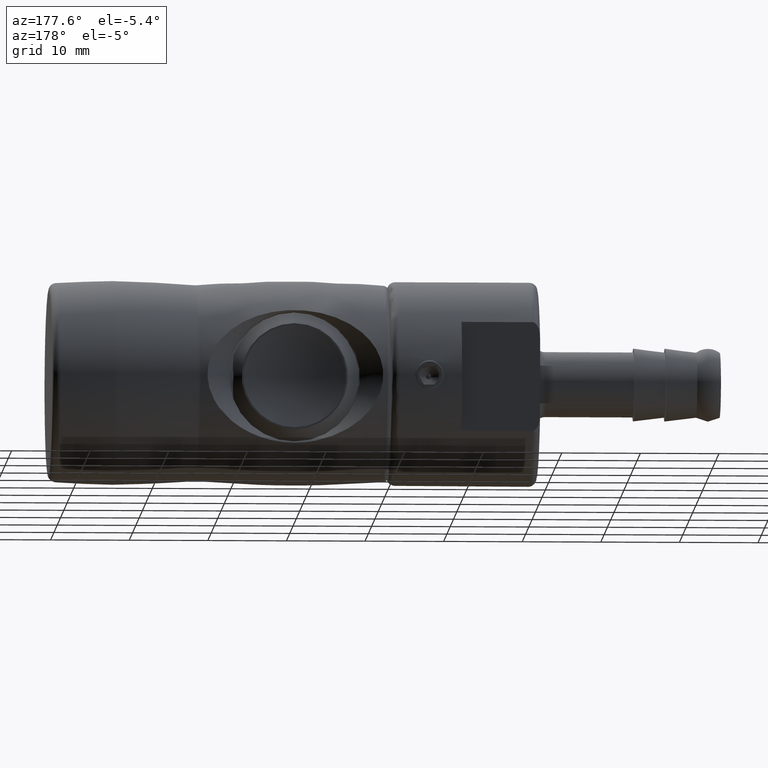
[diagram: clean part render]
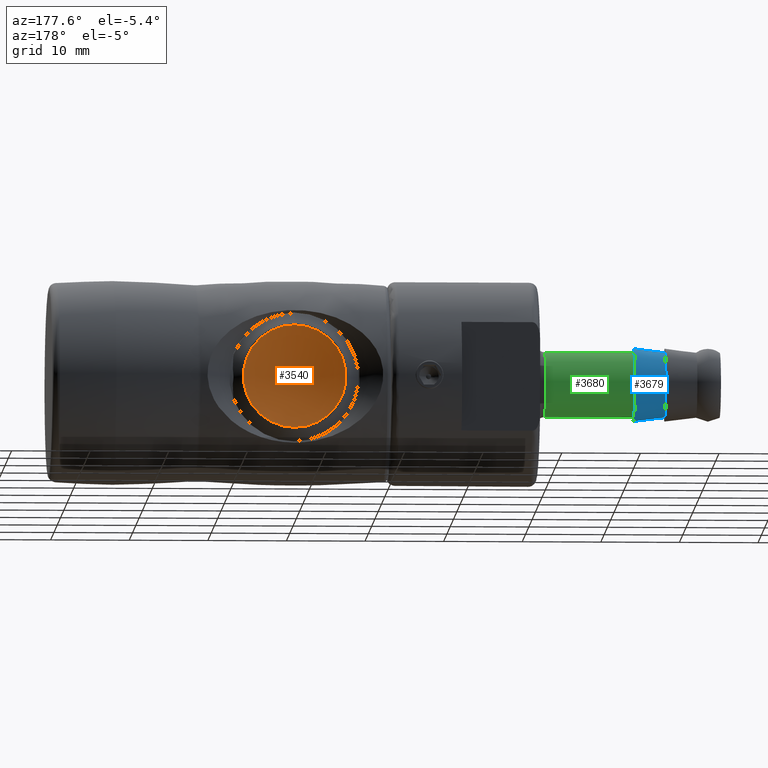
[diagram: same view with three faces highlighted in distinct colors, each labeled with its STEP entity id]
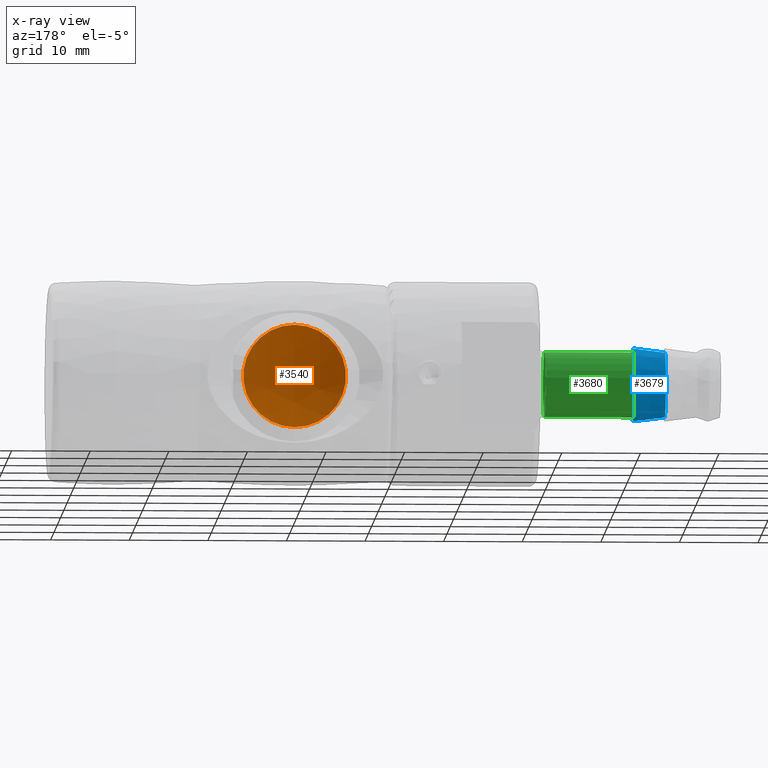
[diagram: x-ray of the same camera — body ghosted, the three highlighted faces saturated]
A machine part, auxiliary view with three faces highlighted in distinct colors.
The next image is the same camera in x-ray (body ghosted, the three faces saturated) — at least one of them is partly hidden behind the body in this view.
Their STEP definitions:

[orange] entity #3540 — the highlighted spherical surface has radius 20 mm.
#13=SPHERICAL_SURFACE('',#3908,20.);
#790=FACE_OUTER_BOUND('',#1022,.T.);
#1022=EDGE_LOOP('',(#2737));
#1287=CIRCLE('',#3909,6.54140657657051);
#1581=VERTEX_POINT('',#8366);
#2037=EDGE_CURVE('',#1581,#1581,#1287,.T.);
#2737=ORIENTED_EDGE('',*,*,#2037,.F.);
#3540=ADVANCED_FACE('',(#790),#13,.F.);
#3908=AXIS2_PLACEMENT_3D('',#8365,#4584,#4585);
#3909=AXIS2_PLACEMENT_3D('',#8367,#4586,#4587);
#4584=DIRECTION('center_axis',(-1.,0.,3.34767643417387E-17));
#4585=DIRECTION('ref_axis',(0.,0.,1.));
#4586=DIRECTION('center_axis',(8.37302466146294E-17,-1.,6.14652588342876E-17));
#4587=DIRECTION('ref_axis',(2.77555756156289E-17,-6.14652588342876E-17,
-1.));
#8365=CARTESIAN_POINT('Origin',(21.8999999999997,29.1482142015979,-1.71566436339552E-15));
#8366=CARTESIAN_POINT('',(21.8999999999997,10.2482142015979,6.54140657657052));
#8367=CARTESIAN_POINT('Origin',(21.8999999999997,10.2482142015979,-5.53970971427483E-16));

[blue] entity #3679 — the highlighted conical surface has half-angle 7.125 deg.
#222=CONICAL_SURFACE('',#4202,4.65000000000038,0.124354994546748);
#473=LINE('',#14570,#612);
#612=VECTOR('',#5270,4.65000000000038);
#929=FACE_OUTER_BOUND('',#1173,.T.);
#1173=EDGE_LOOP('',(#3396,#3397,#3398,#3399,#3400,#3401));
#1448=CIRCLE('',#4203,4.65000000000038);
#1449=CIRCLE('',#4204,4.15000000000043);
#1450=CIRCLE('',#4205,4.15000000000043);
#1451=CIRCLE('',#4206,4.65000000000038);
#1852=VERTEX_POINT('',#14566);
#1853=VERTEX_POINT('',#14567);
#1854=VERTEX_POINT('',#14569);
#1855=VERTEX_POINT('',#14571);
#2375=EDGE_CURVE('',#1852,#1853,#1448,.T.);
#2376=EDGE_CURVE('',#1853,#1854,#473,.T.);
#2377=EDGE_CURVE('',#1855,#1854,#1449,.T.);
#2378=EDGE_CURVE('',#1854,#1855,#1450,.T.);
#2379=EDGE_CURVE('',#1853,#1852,#1451,.T.);
#3396=ORIENTED_EDGE('',*,*,#2375,.T.);
#3397=ORIENTED_EDGE('',*,*,#2376,.T.);
#3398=ORIENTED_EDGE('',*,*,#2377,.F.);
#3399=ORIENTED_EDGE('',*,*,#2378,.F.);
#3400=ORIENTED_EDGE('',*,*,#2376,.F.);
#3401=ORIENTED_EDGE('',*,*,#2379,.T.);
#3679=ADVANCED_FACE('',(#929),#222,.T.);
#4202=AXIS2_PLACEMENT_3D('',#14565,#5266,#5267);
#4203=AXIS2_PLACEMENT_3D('',#14568,#5268,#5269);
#4204=AXIS2_PLACEMENT_3D('',#14572,#5271,#5272);
#4205=AXIS2_PLACEMENT_3D('',#14573,#5273,#5274);
#4206=AXIS2_PLACEMENT_3D('',#14574,#5275,#5276);
#5266=DIRECTION('center_axis',(1.,2.5879858961019E-18,3.851206953318E-18));
#5267=DIRECTION('ref_axis',(-3.851206953318E-18,1.11022302462516E-16,1.));
#5268=DIRECTION('center_axis',(-1.,-2.5879858961019E-18,-3.851206953318E-18));
#5269=DIRECTION('ref_axis',(3.851206953318E-18,-1.11022302462516E-16,-1.));
#5270=DIRECTION('',(-0.992277876713669,-3.98725340030438E-18,0.124034734589195));
#5271=DIRECTION('center_axis',(-1.,-2.5879858961019E-18,-3.851206953318E-18));
#5272=DIRECTION('ref_axis',(3.851206953318E-18,-1.11022302462516E-16,-1.));
#5273=DIRECTION('center_axis',(-1.,-2.5879858961019E-18,-3.851206953318E-18));
#5274=DIRECTION('ref_axis',(3.851206953318E-18,-1.11022302462516E-16,-1.));
#5275=DIRECTION('center_axis',(-1.,-2.5879858961019E-18,-3.851206953318E-18));
#5276=DIRECTION('ref_axis',(3.851206953318E-18,-1.11022302462516E-16,-1.));
#14565=CARTESIAN_POINT('Origin',(-21.5999999999923,-8.10039585479905E-17,
-2.72431666194633E-16));
#14566=CARTESIAN_POINT('',(-21.5999999999923,4.35249747902749E-16,4.65000000000038));
#14567=CARTESIAN_POINT('',(-21.5999999999923,-2.77969033951647E-17,-4.65000000000038));
#14568=CARTESIAN_POINT('Origin',(-21.5999999999923,-8.10039585479905E-17,
-2.72431666194633E-16));
#14569=CARTESIAN_POINT('',(-25.5999999999923,-4.38700357056815E-17,-4.15000000000043));
#14570=CARTESIAN_POINT('',(-21.5999999999923,-2.77969033951647E-17,-4.65000000000038));
#14571=CARTESIAN_POINT('',(-25.5999999999923,3.6938665308709E-16,4.15000000000043));
#14572=CARTESIAN_POINT('Origin',(-25.5999999999923,-9.13559021323981E-17,
-2.87836494007905E-16));
#14573=CARTESIAN_POINT('Origin',(-25.5999999999923,-9.13559021323981E-17,
-2.87836494007905E-16));
#14574=CARTESIAN_POINT('Origin',(-21.5999999999923,-8.10039585479905E-17,
-2.72431666194633E-16));

[green] entity #3680 — the highlighted cylindrical surface (bore or boss wall) has radius 4.15 mm, axis along (-1, -0, -0).
#474=LINE('',#14581,#613);
#613=VECTOR('',#5283,4.15000000000043);
#684=CYLINDRICAL_SURFACE('',#4207,4.15000000000043);
#930=FACE_OUTER_BOUND('',#1174,.T.);
#1174=EDGE_LOOP('',(#3402,#3403,#3404,#3405,#3406,#3407));
#1452=CIRCLE('',#4208,4.15000000000043);
#1453=CIRCLE('',#4209,4.15000000000043);
#1454=CIRCLE('',#4210,4.15000000000043);
#1455=CIRCLE('',#4211,4.15000000000043);
#1856=VERTEX_POINT('',#14576);
#1857=VERTEX_POINT('',#14577);
#1858=VERTEX_POINT('',#14580);
#1859=VERTEX_POINT('',#14582);
#2380=EDGE_CURVE('',#1856,#1857,#1452,.T.);
#2381=EDGE_CURVE('',#1857,#1856,#1453,.T.);
#2382=EDGE_CURVE('',#1857,#1858,#474,.T.);
#2383=EDGE_CURVE('',#1858,#1859,#1454,.T.);
#2384=EDGE_CURVE('',#1859,#1858,#1455,.T.);
#3402=ORIENTED_EDGE('',*,*,#2380,.F.);
#3403=ORIENTED_EDGE('',*,*,#2381,.F.);
#3404=ORIENTED_EDGE('',*,*,#2382,.T.);
#3405=ORIENTED_EDGE('',*,*,#2383,.T.);
#3406=ORIENTED_EDGE('',*,*,#2384,.T.);
#3407=ORIENTED_EDGE('',*,*,#2382,.F.);
#3680=ADVANCED_FACE('',(#930),#684,.T.);
#4207=AXIS2_PLACEMENT_3D('',#14575,#5277,#5278);
#4208=AXIS2_PLACEMENT_3D('',#14578,#5279,#5280);
#4209=AXIS2_PLACEMENT_3D('',#14579,#5281,#5282);
#4210=AXIS2_PLACEMENT_3D('',#14583,#5284,#5285);
#4211=AXIS2_PLACEMENT_3D('',#14584,#5286,#5287);
#5277=DIRECTION('center_axis',(-1.,-2.5879858961019E-18,-3.851206953318E-18));
#5278=DIRECTION('ref_axis',(3.851206953318E-18,-1.11022302462516E-16,-1.));
#5279=DIRECTION('center_axis',(-1.,-2.5879858961019E-18,-3.851206953318E-18));
#5280=DIRECTION('ref_axis',(3.851206953318E-18,-1.11022302462516E-16,-1.));
#5281=DIRECTION('center_axis',(-1.,-2.5879858961019E-18,-3.851206953318E-18));
#5282=DIRECTION('ref_axis',(3.851206953318E-18,-1.11022302462516E-16,-1.));
#5283=DIRECTION('',(1.,2.58798589610191E-18,3.851206953318E-18));
#5284=DIRECTION('center_axis',(-1.,-2.5879858961019E-18,-3.851206953318E-18));
#5285=DIRECTION('ref_axis',(3.851206953318E-18,-1.11022302462516E-16,-1.));
#5286=DIRECTION('center_axis',(-1.,-2.5879858961019E-18,-3.851206953318E-18));
#5287=DIRECTION('ref_axis',(3.851206953318E-18,-1.11022302462516E-16,-1.));
#14575=CARTESIAN_POINT('Origin',(-32.599999999992,-1.09471803405111E-16,
-3.1479494268113E-16));
#14576=CARTESIAN_POINT('',(-21.5999999999923,-5.41746513767478E-16,-4.15000000000043));
#14577=CARTESIAN_POINT('',(-21.5999999999923,8.87967018317702E-16,4.15000000000043));
#14578=CARTESIAN_POINT('Origin',(-21.5999999999923,-8.10039585479905E-17,
-2.72431666194633E-16));
#14579=CARTESIAN_POINT('Origin',(-21.5999999999923,-8.10039585479905E-17,
-2.72431666194633E-16));
#14580=CARTESIAN_POINT('',(-10.2999999999944,9.17211258943648E-16,4.15000000000043));
#14581=CARTESIAN_POINT('',(-32.599999999992,8.59499173460582E-16,4.15000000000043));
#14582=CARTESIAN_POINT('',(-10.2999999999944,-5.12502273141532E-16,-4.15000000000043));
#14583=CARTESIAN_POINT('Origin',(-10.2999999999944,-5.17597179220445E-17,
-2.28913027622148E-16));
#14584=CARTESIAN_POINT('Origin',(-10.2999999999944,-5.17597179220445E-17,
-2.28913027622148E-16));